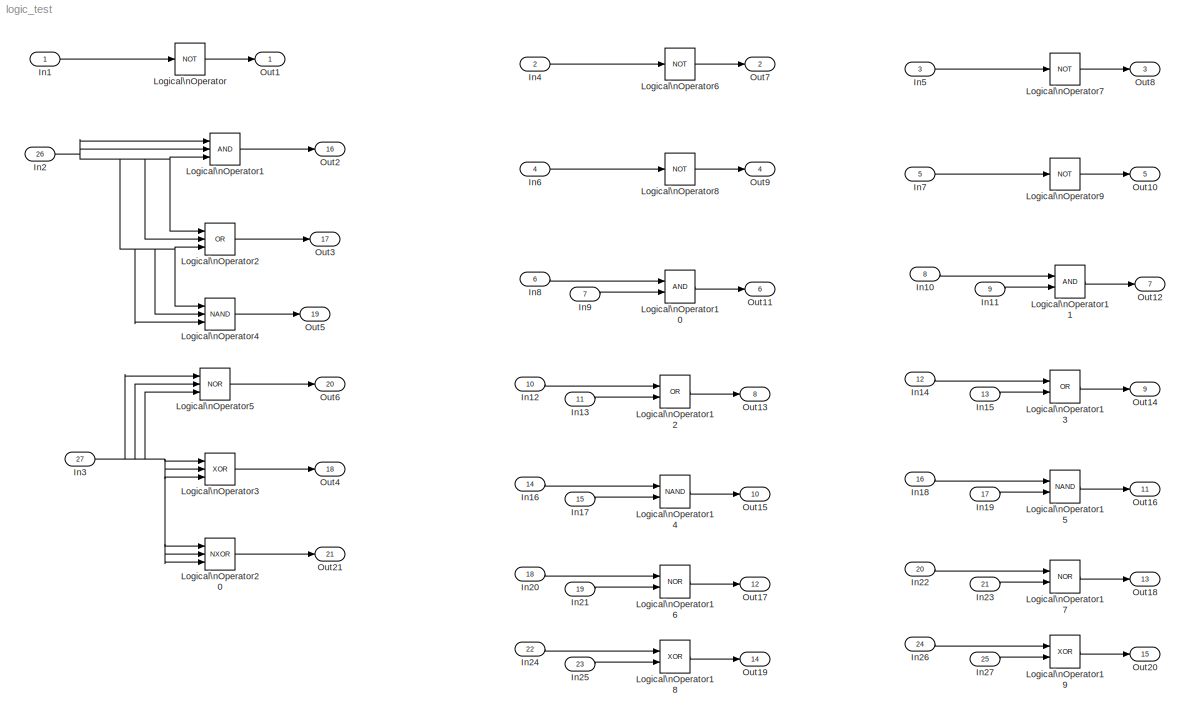
MODEL logic_test
KIND model
BLOCK [Inport] In1
  IconDisplay = Port number
  SID = 1
BLOCK [Inport] In10
  IconDisplay = Port number
  OutDataTypeStr = int8
  Port = 8
  PortDimensions = [2 3]
  SID = 8
BLOCK [Inport] In11
  IconDisplay = Port number
  OutDataTypeStr = int8
  Port = 9
  PortDimensions = [2 3]
  SID = 9
BLOCK [Inport] In12
  IconDisplay = Port number
  OutDataTypeStr = double
  Port = 10
  PortDimensions = 2
  SID = 10
BLOCK [Inport] In13
  IconDisplay = Port number
  OutDataTypeStr = double
  Port = 11
  PortDimensions = 2
  SID = 11
BLOCK [Inport] In14
  IconDisplay = Port number
  OutDataTypeStr = int8
  Port = 12
  PortDimensions = [2 3]
  SID = 12
BLOCK [Inport] In15
  IconDisplay = Port number
  OutDataTypeStr = int8
  Port = 13
  PortDimensions = [2 3]
  SID = 13
BLOCK [Inport] In16
  IconDisplay = Port number
  OutDataTypeStr = double
  Port = 14
  PortDimensions = 2
  SID = 14
BLOCK [Inport] In17
  IconDisplay = Port number
  OutDataTypeStr = double
  Port = 15
  PortDimensions = 2
  SID = 15
BLOCK [Inport] In18
  IconDisplay = Port number
  OutDataTypeStr = int8
  Port = 16
  PortDimensions = [2 3]
  SID = 16
BLOCK [Inport] In19
  IconDisplay = Port number
  OutDataTypeStr = int8
  Port = 17
  PortDimensions = [2 3]
  SID = 17
BLOCK [Inport] In2
  IconDisplay = Port number
  Port = 26
  PortDimensions = [2]
  SID = 26
BLOCK [Inport] In20
  IconDisplay = Port number
  OutDataTypeStr = double
  Port = 18
  PortDimensions = 2
  SID = 18
BLOCK [Inport] In21
  IconDisplay = Port number
  OutDataTypeStr = double
  Port = 19
  PortDimensions = 2
  SID = 19
BLOCK [Inport] In22
  IconDisplay = Port number
  OutDataTypeStr = int8
  Port = 20
  PortDimensions = [2 3]
  SID = 20
BLOCK [Inport] In23
  IconDisplay = Port number
  OutDataTypeStr = int8
  Port = 21
  PortDimensions = [2 3]
  SID = 21
BLOCK [Inport] In24
  IconDisplay = Port number
  OutDataTypeStr = double
  Port = 22
  PortDimensions = 2
  SID = 22
BLOCK [Inport] In25
  IconDisplay = Port number
  OutDataTypeStr = double
  Port = 23
  PortDimensions = 2
  SID = 23
BLOCK [Inport] In26
  IconDisplay = Port number
  OutDataTypeStr = int8
  Port = 24
  PortDimensions = [2 3]
  SID = 24
BLOCK [Inport] In27
  IconDisplay = Port number
  OutDataTypeStr = int8
  Port = 25
  PortDimensions = [2 3]
  SID = 25
BLOCK [Inport] In3
  IconDisplay = Port number
  Port = 27
  PortDimensions = [2 2]
  SID = 27
BLOCK [Inport] In4
  IconDisplay = Port number
  OutDataTypeStr = double
  Port = 2
  SID = 2
BLOCK [Inport] In5
  IconDisplay = Port number
  OutDataTypeStr = int8
  Port = 3
  SID = 3
BLOCK [Inport] In6
  IconDisplay = Port number
  OutDataTypeStr = double
  Port = 4
  PortDimensions = 2
  SID = 4
BLOCK [Inport] In7
  IconDisplay = Port number
  OutDataTypeStr = int8
  Port = 5
  PortDimensions = [2 3]
  SID = 5
BLOCK [Inport] In8
  IconDisplay = Port number
  OutDataTypeStr = double
  Port = 6
  PortDimensions = 2
  SID = 6
BLOCK [Inport] In9
  IconDisplay = Port number
  OutDataTypeStr = double
  Port = 7
  PortDimensions = 2
  SID = 7
BLOCK [Logic] Logical\nOperator
  AllPortsSameDT = off
  Operator = NOT
  OutDataTypeStr = boolean
  Ports = [1, 1]
  SID = 28
BLOCK [Logic] Logical\nOperator1
  AllPortsSameDT = off
  Inputs = 3
  OutDataTypeStr = boolean
  Ports = [3, 1]
  SID = 29
BLOCK [Logic] Logical\nOperator10
  AllPortsSameDT = off
  OutDataTypeStr = boolean
  Ports = [2, 1]
  SID = 30
BLOCK [Logic] Logical\nOperator11
  AllPortsSameDT = off
  OutDataTypeStr = boolean
  Ports = [2, 1]
  SID = 31
BLOCK [Logic] Logical\nOperator12
  AllPortsSameDT = off
  Operator = OR
  OutDataTypeStr = boolean
  Ports = [2, 1]
  SID = 32
BLOCK [Logic] Logical\nOperator13
  AllPortsSameDT = off
  Operator = OR
  OutDataTypeStr = boolean
  Ports = [2, 1]
  SID = 33
BLOCK [Logic] Logical\nOperator14
  AllPortsSameDT = off
  Operator = NAND
  OutDataTypeStr = boolean
  Ports = [2, 1]
  SID = 34
BLOCK [Logic] Logical\nOperator15
  AllPortsSameDT = off
  Operator = NAND
  OutDataTypeStr = boolean
  Ports = [2, 1]
  SID = 35
BLOCK [Logic] Logical\nOperator16
  AllPortsSameDT = off
  Operator = NOR
  OutDataTypeStr = boolean
  Ports = [2, 1]
  SID = 36
BLOCK [Logic] Logical\nOperator17
  AllPortsSameDT = off
  Operator = NOR
  OutDataTypeStr = boolean
  Ports = [2, 1]
  SID = 37
BLOCK [Logic] Logical\nOperator18
  AllPortsSameDT = off
  Operator = XOR
  OutDataTypeStr = boolean
  Ports = [2, 1]
  SID = 38
BLOCK [Logic] Logical\nOperator19
  AllPortsSameDT = off
  Operator = XOR
  OutDataTypeStr = boolean
  Ports = [2, 1]
  SID = 39
BLOCK [Logic] Logical\nOperator2
  AllPortsSameDT = off
  Inputs = 3
  Operator = OR
  OutDataTypeStr = boolean
  Ports = [3, 1]
  SID = 40
BLOCK [Logic] Logical\nOperator20
  AllPortsSameDT = off
  Inputs = 3
  Operator = NXOR
  OutDataTypeStr = boolean
  Ports = [3, 1]
  SID = 68
BLOCK [Logic] Logical\nOperator3
  AllPortsSameDT = off
  Inputs = 3
  Operator = XOR
  OutDataTypeStr = boolean
  Ports = [3, 1]
  SID = 41
BLOCK [Logic] Logical\nOperator4
  AllPortsSameDT = off
  Inputs = 3
  Operator = NAND
  OutDataTypeStr = boolean
  Ports = [3, 1]
  SID = 42
BLOCK [Logic] Logical\nOperator5
  AllPortsSameDT = off
  Inputs = 3
  Operator = NOR
  OutDataTypeStr = boolean
  Ports = [3, 1]
  SID = 43
BLOCK [Logic] Logical\nOperator6
  AllPortsSameDT = off
  Operator = NOT
  OutDataTypeStr = boolean
  Ports = [1, 1]
  SID = 44
BLOCK [Logic] Logical\nOperator7
  AllPortsSameDT = off
  Operator = NOT
  OutDataTypeStr = boolean
  Ports = [1, 1]
  SID = 45
BLOCK [Logic] Logical\nOperator8
  AllPortsSameDT = off
  Operator = NOT
  OutDataTypeStr = boolean
  Ports = [1, 1]
  SID = 46
BLOCK [Logic] Logical\nOperator9
  AllPortsSameDT = off
  Operator = NOT
  OutDataTypeStr = boolean
  Ports = [1, 1]
  SID = 47
BLOCK [Outport] Out1
  IconDisplay = Port number
  SID = 48
BLOCK [Outport] Out10
  IconDisplay = Port number
  Port = 5
  SID = 52
BLOCK [Outport] Out11
  IconDisplay = Port number
  Port = 6
  SID = 53
BLOCK [Outport] Out12
  IconDisplay = Port number
  Port = 7
  SID = 54
BLOCK [Outport] Out13
  IconDisplay = Port number
  Port = 8
  SID = 55
BLOCK [Outport] Out14
  IconDisplay = Port number
  Port = 9
  SID = 56
BLOCK [Outport] Out15
  IconDisplay = Port number
  Port = 10
  SID = 57
BLOCK [Outport] Out16
  IconDisplay = Port number
  Port = 11
  SID = 58
BLOCK [Outport] Out17
  IconDisplay = Port number
  Port = 12
  SID = 59
BLOCK [Outport] Out18
  IconDisplay = Port number
  Port = 13
  SID = 60
BLOCK [Outport] Out19
  IconDisplay = Port number
  Port = 14
  SID = 61
BLOCK [Outport] Out2
  IconDisplay = Port number
  Port = 16
  SID = 63
BLOCK [Outport] Out20
  IconDisplay = Port number
  Port = 15
  SID = 62
BLOCK [Outport] Out21
  IconDisplay = Port number
  Port = 21
  SID = 69
BLOCK [Outport] Out3
  IconDisplay = Port number
  Port = 17
  SID = 64
BLOCK [Outport] Out4
  IconDisplay = Port number
  Port = 18
  SID = 65
BLOCK [Outport] Out5
  IconDisplay = Port number
  Port = 19
  SID = 66
BLOCK [Outport] Out6
  IconDisplay = Port number
  Port = 20
  SID = 67
BLOCK [Outport] Out7
  IconDisplay = Port number
  Port = 2
  SID = 49
BLOCK [Outport] Out8
  IconDisplay = Port number
  Port = 3
  SID = 50
BLOCK [Outport] Out9
  IconDisplay = Port number
  Port = 4
  SID = 51
LINE In10:1 -> Logical\nOperator11:1
LINE In11:1 -> Logical\nOperator11:2
LINE In12:1 -> Logical\nOperator12:1
LINE In13:1 -> Logical\nOperator12:2
LINE In14:1 -> Logical\nOperator13:1
LINE In15:1 -> Logical\nOperator13:2
LINE In16:1 -> Logical\nOperator14:1
LINE In17:1 -> Logical\nOperator14:2
LINE In18:1 -> Logical\nOperator15:1
LINE In19:1 -> Logical\nOperator15:2
LINE In1:1 -> Logical\nOperator:1
LINE In20:1 -> Logical\nOperator16:1
LINE In21:1 -> Logical\nOperator16:2
LINE In22:1 -> Logical\nOperator17:1
LINE In23:1 -> Logical\nOperator17:2
LINE In24:1 -> Logical\nOperator18:1
LINE In25:1 -> Logical\nOperator18:2
LINE In26:1 -> Logical\nOperator19:1
LINE In27:1 -> Logical\nOperator19:2
NET In2:1 -> Logical\nOperator1:1, Logical\nOperator1:2, Logical\nOperator1:3, Logical\nOperator2:1, Logical\nOperator2:2, Logical\nOperator2:3, Logical\nOperator4:1, Logical\nOperator4:2, Logical\nOperator4:3
NET In3:1 -> Logical\nOperator20:1, Logical\nOperator20:2, Logical\nOperator20:3, Logical\nOperator3:1, Logical\nOperator3:2, Logical\nOperator3:3, Logical\nOperator5:1, Logical\nOperator5:2, Logical\nOperator5:3
LINE In4:1 -> Logical\nOperator6:1
LINE In5:1 -> Logical\nOperator7:1
LINE In6:1 -> Logical\nOperator8:1
LINE In7:1 -> Logical\nOperator9:1
LINE In8:1 -> Logical\nOperator10:1
LINE In9:1 -> Logical\nOperator10:2
LINE Logical\nOperator10:1 -> Out11:1
LINE Logical\nOperator11:1 -> Out12:1
LINE Logical\nOperator12:1 -> Out13:1
LINE Logical\nOperator13:1 -> Out14:1
LINE Logical\nOperator14:1 -> Out15:1
LINE Logical\nOperator15:1 -> Out16:1
LINE Logical\nOperator16:1 -> Out17:1
LINE Logical\nOperator17:1 -> Out18:1
LINE Logical\nOperator18:1 -> Out19:1
LINE Logical\nOperator19:1 -> Out20:1
LINE Logical\nOperator1:1 -> Out2:1
LINE Logical\nOperator20:1 -> Out21:1
LINE Logical\nOperator2:1 -> Out3:1
LINE Logical\nOperator3:1 -> Out4:1
LINE Logical\nOperator4:1 -> Out5:1
LINE Logical\nOperator5:1 -> Out6:1
LINE Logical\nOperator6:1 -> Out7:1
LINE Logical\nOperator7:1 -> Out8:1
LINE Logical\nOperator8:1 -> Out9:1
LINE Logical\nOperator9:1 -> Out10:1
LINE Logical\nOperator:1 -> Out1:1
note: NET lines group one-source signal fan-out (src -> all destinations, sorted); 1:1 wires keep LINE
